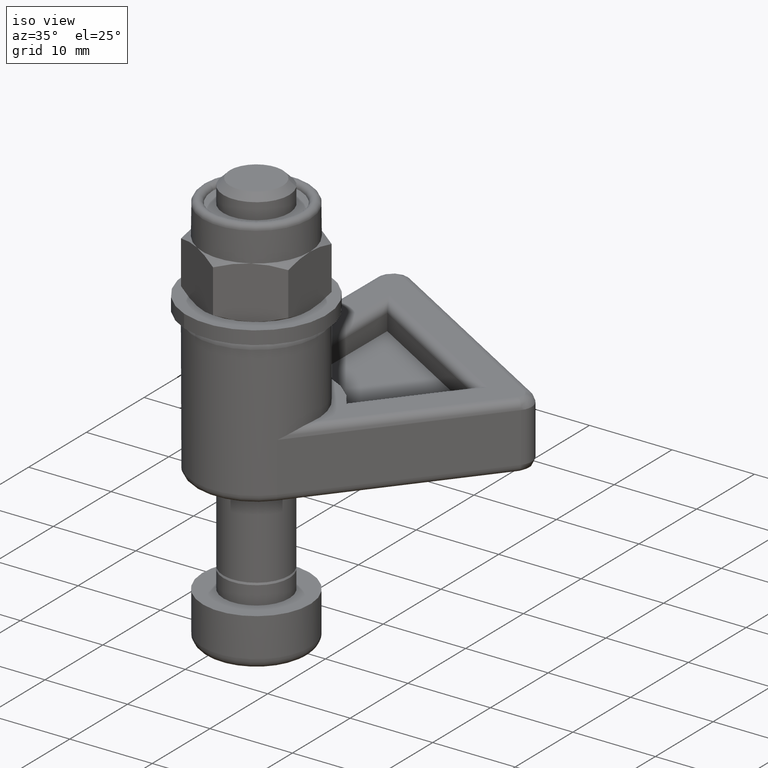
[diagram: clean part render]
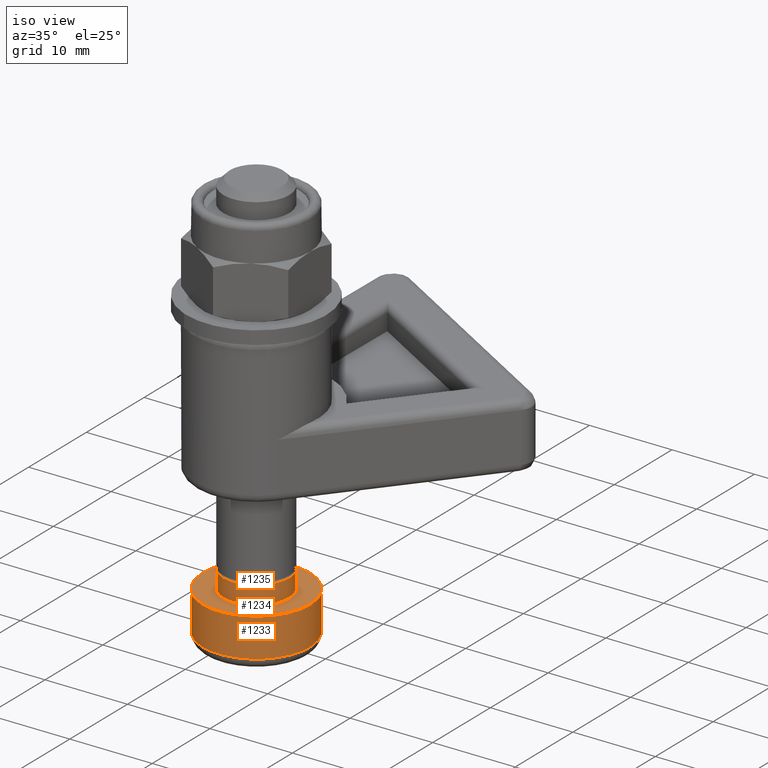
[diagram: same view with one multi-face feature highlighted, each face labeled with its STEP entity id]
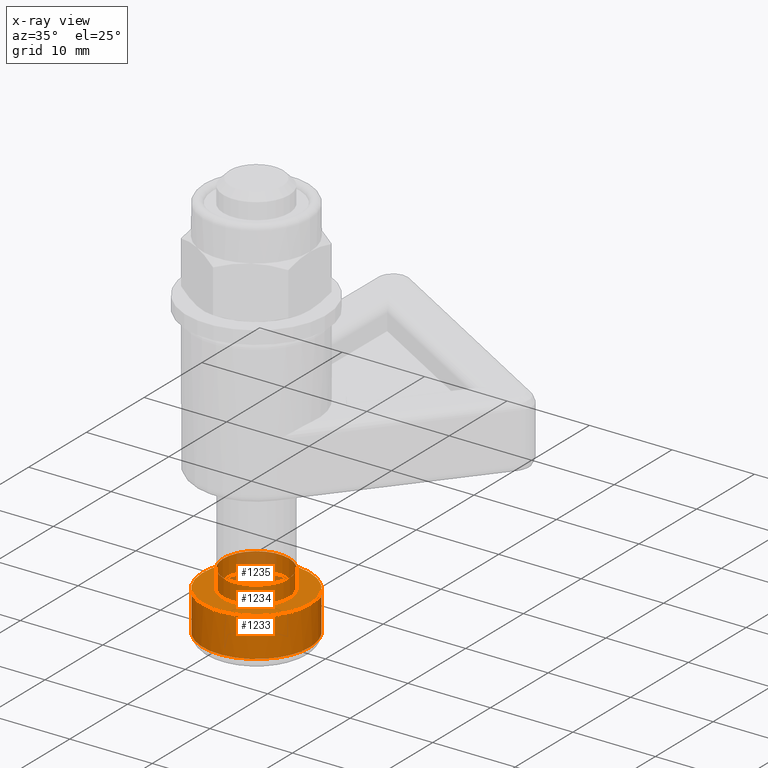
[diagram: x-ray of the same camera — body ghosted, the whole feature saturated]
A machine part, iso view. The highlighted faces form ONE feature: a stepped (counterbored) hole: 2 coaxial cylindrical walls of radii 4 -> 6.5 mm joined by 1 annular planar shoulder face(s). The faces share edges in the B-rep.
The next image is the same camera in x-ray: the body ghosted and the whole hole feature saturated, so the bore chain is visible through the body.
Their STEP definitions:
[1] entity #1233 (Cylinder):
#123=LINE('',#2196,#188);
#188=VECTOR('',#1735,6.5);
#234=CYLINDRICAL_SURFACE('',#1470,6.5);
#300=FACE_OUTER_BOUND('',#383,.T.);
#383=EDGE_LOOP('',(#969,#970,#971,#972,#973,#974,#975));
#455=CIRCLE('',#1466,6.5);
#456=CIRCLE('',#1467,6.5);
#457=CIRCLE('',#1468,6.5);
#459=CIRCLE('',#1471,6.5);
#460=CIRCLE('',#1472,6.5);
#557=VERTEX_POINT('',#2184);
#558=VERTEX_POINT('',#2185);
#559=VERTEX_POINT('',#2187);
#560=VERTEX_POINT('',#2192);
#561=VERTEX_POINT('',#2193);
#702=EDGE_CURVE('',#557,#558,#455,.T.);
#703=EDGE_CURVE('',#559,#557,#456,.T.);
#704=EDGE_CURVE('',#558,#559,#457,.T.);
#706=EDGE_CURVE('',#560,#561,#459,.T.);
#707=EDGE_CURVE('',#561,#560,#460,.T.);
#708=EDGE_CURVE('',#561,#559,#123,.T.);
#969=ORIENTED_EDGE('',*,*,#706,.F.);
#970=ORIENTED_EDGE('',*,*,#707,.F.);
#971=ORIENTED_EDGE('',*,*,#708,.T.);
#972=ORIENTED_EDGE('',*,*,#703,.T.);
#973=ORIENTED_EDGE('',*,*,#702,.T.);
#974=ORIENTED_EDGE('',*,*,#704,.T.);
#975=ORIENTED_EDGE('',*,*,#708,.F.);
#1233=ADVANCED_FACE('',(#300),#234,.T.);
#1466=AXIS2_PLACEMENT_3D('',#2186,#1721,#1722);
#1467=AXIS2_PLACEMENT_3D('',#2188,#1723,#1724);
#1468=AXIS2_PLACEMENT_3D('',#2189,#1725,#1726);
#1470=AXIS2_PLACEMENT_3D('',#2191,#1729,#1730);
#1471=AXIS2_PLACEMENT_3D('',#2194,#1731,#1732);
#1472=AXIS2_PLACEMENT_3D('',#2195,#1733,#1734);
#1721=DIRECTION('center_axis',(1.,1.06036163100756E-33,0.));
#1722=DIRECTION('ref_axis',(0.,1.,0.));
#1723=DIRECTION('center_axis',(1.,1.06036163100756E-33,0.));
#1724=DIRECTION('ref_axis',(0.,1.,0.));
#1725=DIRECTION('center_axis',(1.,1.06036163100756E-33,0.));
#1726=DIRECTION('ref_axis',(0.,1.,0.));
#1729=DIRECTION('center_axis',(1.,1.06036163100756E-33,0.));
#1730=DIRECTION('ref_axis',(0.,1.,0.));
#1731=DIRECTION('center_axis',(1.,1.06036163100756E-33,0.));
#1732=DIRECTION('ref_axis',(0.,1.,0.));
#1733=DIRECTION('center_axis',(1.,1.06036163100756E-33,0.));
#1734=DIRECTION('ref_axis',(0.,1.,0.));
#1735=DIRECTION('',(-1.,-1.06036163100756E-33,0.));
#2184=CARTESIAN_POINT('',(1.3,6.5,0.));
#2185=CARTESIAN_POINT('',(1.3,-7.9602041944578E-16,6.5));
#2186=CARTESIAN_POINT('Origin',(1.3,-3.39315721922418E-33,0.));
#2187=CARTESIAN_POINT('',(1.3,-6.5,-7.9602041944578E-16));
#2188=CARTESIAN_POINT('Origin',(1.3,-3.39315721922418E-33,0.));
#2189=CARTESIAN_POINT('Origin',(1.3,-3.39315721922418E-33,0.));
#2191=CARTESIAN_POINT('Origin',(3.65,-9.01307386356423E-34,0.));
#2192=CARTESIAN_POINT('',(6.,6.5,0.));
#2193=CARTESIAN_POINT('',(6.,-6.5,-7.9602041944578E-16));
#2194=CARTESIAN_POINT('Origin',(6.,1.59054244651133E-33,0.));
#2195=CARTESIAN_POINT('Origin',(6.,1.59054244651133E-33,0.));
#2196=CARTESIAN_POINT('',(3.65,-6.5,-7.9602041944578E-16));
[2] entity #1235 (Cylinder):
#124=LINE('',#2207,#189);
#189=VECTOR('',#1748,4.);
#235=CYLINDRICAL_SURFACE('',#1476,4.);
#302=FACE_OUTER_BOUND('',#386,.T.);
#386=EDGE_LOOP('',(#980,#981,#982,#983,#984,#985));
#461=CIRCLE('',#1474,4.);
#462=CIRCLE('',#1475,4.);
#463=CIRCLE('',#1477,4.);
#464=CIRCLE('',#1478,4.);
#562=VERTEX_POINT('',#2198);
#563=VERTEX_POINT('',#2199);
#564=VERTEX_POINT('',#2203);
#565=VERTEX_POINT('',#2204);
#709=EDGE_CURVE('',#562,#563,#461,.T.);
#710=EDGE_CURVE('',#563,#562,#462,.T.);
#711=EDGE_CURVE('',#564,#565,#463,.T.);
#712=EDGE_CURVE('',#565,#564,#464,.T.);
#713=EDGE_CURVE('',#565,#563,#124,.T.);
#980=ORIENTED_EDGE('',*,*,#711,.F.);
#981=ORIENTED_EDGE('',*,*,#712,.F.);
#982=ORIENTED_EDGE('',*,*,#713,.T.);
#983=ORIENTED_EDGE('',*,*,#710,.T.);
#984=ORIENTED_EDGE('',*,*,#709,.T.);
#985=ORIENTED_EDGE('',*,*,#713,.F.);
#1235=ADVANCED_FACE('',(#302),#235,.T.);
#1474=AXIS2_PLACEMENT_3D('',#2200,#1738,#1739);
#1475=AXIS2_PLACEMENT_3D('',#2201,#1740,#1741);
#1476=AXIS2_PLACEMENT_3D('',#2202,#1742,#1743);
#1477=AXIS2_PLACEMENT_3D('',#2205,#1744,#1745);
#1478=AXIS2_PLACEMENT_3D('',#2206,#1746,#1747);
#1738=DIRECTION('center_axis',(1.,1.06036163100756E-33,0.));
#1739=DIRECTION('ref_axis',(0.,1.,0.));
#1740=DIRECTION('center_axis',(1.,1.06036163100756E-33,0.));
#1741=DIRECTION('ref_axis',(0.,1.,0.));
#1742=DIRECTION('center_axis',(1.,1.06036163100756E-33,0.));
#1743=DIRECTION('ref_axis',(0.,1.,0.));
#1744=DIRECTION('center_axis',(1.,1.06036163100756E-33,0.));
#1745=DIRECTION('ref_axis',(0.,1.,0.));
#1746=DIRECTION('center_axis',(1.,1.06036163100756E-33,0.));
#1747=DIRECTION('ref_axis',(0.,1.,0.));
#1748=DIRECTION('',(-1.,-1.06036163100756E-33,0.));
#2198=CARTESIAN_POINT('',(6.,4.,0.));
#2199=CARTESIAN_POINT('',(6.,-4.,-4.89858719658941E-16));
#2200=CARTESIAN_POINT('Origin',(6.,1.59054244651133E-33,0.));
#2201=CARTESIAN_POINT('Origin',(6.,1.59054244651133E-33,0.));
#2202=CARTESIAN_POINT('Origin',(7.11143593539449,2.76906646772664E-33,0.));
#2203=CARTESIAN_POINT('',(8.22287187078897,4.,0.));
#2204=CARTESIAN_POINT('',(8.22287187078897,-4.,-4.89858719658941E-16));
#2205=CARTESIAN_POINT('Origin',(8.22287187078897,3.94759048894195E-33,0.));
#2206=CARTESIAN_POINT('Origin',(8.22287187078897,3.94759048894195E-33,0.));
#2207=CARTESIAN_POINT('',(7.11143593539449,-4.,-4.89858719658941E-16));
[3] entity #1234 (Plane):
#257=FACE_BOUND('',#385,.T.);
#301=FACE_OUTER_BOUND('',#384,.T.);
#384=EDGE_LOOP('',(#976,#977));
#385=EDGE_LOOP('',(#978,#979));
#459=CIRCLE('',#1471,6.5);
#460=CIRCLE('',#1472,6.5);
#461=CIRCLE('',#1474,4.);
#462=CIRCLE('',#1475,4.);
#560=VERTEX_POINT('',#2192);
#561=VERTEX_POINT('',#2193);
#562=VERTEX_POINT('',#2198);
#563=VERTEX_POINT('',#2199);
#706=EDGE_CURVE('',#560,#561,#459,.T.);
#707=EDGE_CURVE('',#561,#560,#460,.T.);
#709=EDGE_CURVE('',#562,#563,#461,.T.);
#710=EDGE_CURVE('',#563,#562,#462,.T.);
#976=ORIENTED_EDGE('',*,*,#706,.T.);
#977=ORIENTED_EDGE('',*,*,#707,.T.);
#978=ORIENTED_EDGE('',*,*,#709,.F.);
#979=ORIENTED_EDGE('',*,*,#710,.F.);
#1174=PLANE('',#1473);
#1234=ADVANCED_FACE('',(#301,#257),#1174,.T.);
#1471=AXIS2_PLACEMENT_3D('',#2194,#1731,#1732);
#1472=AXIS2_PLACEMENT_3D('',#2195,#1733,#1734);
#1473=AXIS2_PLACEMENT_3D('',#2197,#1736,#1737);
#1474=AXIS2_PLACEMENT_3D('',#2200,#1738,#1739);
#1475=AXIS2_PLACEMENT_3D('',#2201,#1740,#1741);
#1731=DIRECTION('center_axis',(1.,1.06036163100756E-33,0.));
#1732=DIRECTION('ref_axis',(0.,1.,0.));
#1733=DIRECTION('center_axis',(1.,1.06036163100756E-33,0.));
#1734=DIRECTION('ref_axis',(0.,1.,0.));
#1736=DIRECTION('center_axis',(1.,1.06036163100756E-33,0.));
#1737=DIRECTION('ref_axis',(0.,0.,-1.));
#1738=DIRECTION('center_axis',(1.,1.06036163100756E-33,0.));
#1739=DIRECTION('ref_axis',(0.,1.,0.));
#1740=DIRECTION('center_axis',(1.,1.06036163100756E-33,0.));
#1741=DIRECTION('ref_axis',(0.,1.,0.));
#2192=CARTESIAN_POINT('',(6.,6.5,0.));
#2193=CARTESIAN_POINT('',(6.,-6.5,-7.9602041944578E-16));
#2194=CARTESIAN_POINT('Origin',(6.,1.59054244651133E-33,0.));
#2195=CARTESIAN_POINT('Origin',(6.,1.59054244651133E-33,0.));
#2197=CARTESIAN_POINT('Origin',(6.,5.25,0.));
#2198=CARTESIAN_POINT('',(6.,4.,0.));
#2199=CARTESIAN_POINT('',(6.,-4.,-4.89858719658941E-16));
#2200=CARTESIAN_POINT('Origin',(6.,1.59054244651133E-33,0.));
#2201=CARTESIAN_POINT('Origin',(6.,1.59054244651133E-33,0.));